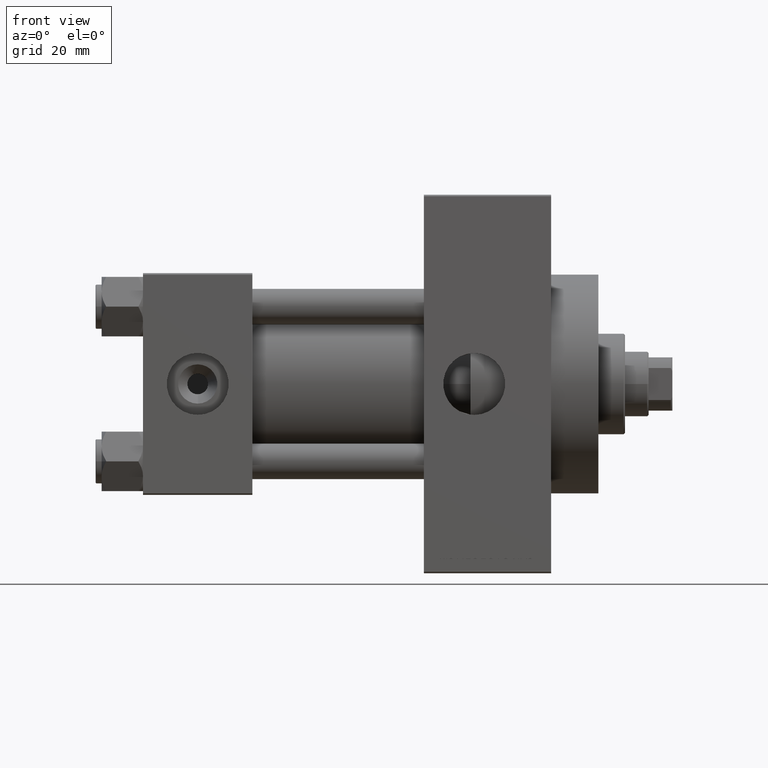
[diagram: clean part render]
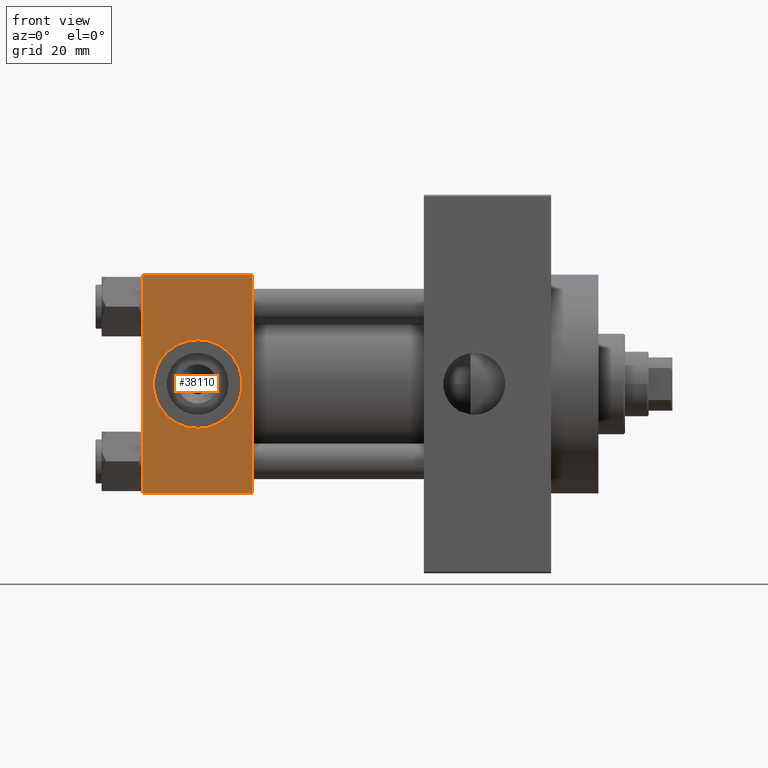
[diagram: same view with one face highlighted and labeled with its STEP entity id]
A machine part, front view. The second image highlights one B-rep face of the part: STEP entity #38110.
In plain terms, the highlighted planar face has unit normal (0, 1, 0).
Its self-contained STEP definition (entity closure, byte-faithful):
#2446 = CARTESIAN_POINT ( 'NONE',  ( 18.50000000000000000, -37.50000000000000711, -3.469446951953614978E-15 ) ) ;
#4035 = CIRCLE ( 'NONE', #34272, 15.00000000000000178 ) ;
#6130 = DIRECTION ( 'NONE',  ( 1.000000000000000000, 0.000000000000000000, 0.000000000000000000 ) ) ;
#7114 = CIRCLE ( 'NONE', #34962, 15.00000000000000178 ) ;
#7753 = CARTESIAN_POINT ( 'NONE',  ( 37.00000000000000000, -37.50000000000000711, 36.99999999999999289 ) ) ;
#8554 = VERTEX_POINT ( 'NONE', #25510 ) ;
#8585 = DIRECTION ( 'NONE',  ( -0.000000000000000000, 1.000000000000000000, 9.251858538542971581E-17 ) ) ;
#11208 = ORIENTED_EDGE ( 'NONE', *, *, #39751, .T. ) ;
#11679 = EDGE_CURVE ( 'NONE', #12432, #40821, #36765, .T. ) ;
#11741 = VERTEX_POINT ( 'NONE', #49257 ) ;
#11866 = FACE_BOUND ( 'NONE', #13862, .T. ) ;
#12432 = VERTEX_POINT ( 'NONE', #19006 ) ;
#13656 = DIRECTION ( 'NONE',  ( 0.000000000000000000, 0.000000000000000000, -1.000000000000000000 ) ) ;
#13862 = EDGE_LOOP ( 'NONE', ( #39369, #16873 ) ) ;
#16069 = CARTESIAN_POINT ( 'NONE',  ( 37.00000000000000000, -37.50000000000000711, 37.49999999999999289 ) ) ;
#16626 = VERTEX_POINT ( 'NONE', #48417 ) ;
#16873 = ORIENTED_EDGE ( 'NONE', *, *, #30347, .F. ) ;
#17108 = DIRECTION ( 'NONE',  ( 0.000000000000000000, 9.251858538542971581E-17, -1.000000000000000000 ) ) ;
#17441 = EDGE_CURVE ( 'NONE', #35490, #40821, #37746, .T. ) ;
#18325 = EDGE_CURVE ( 'NONE', #35490, #16626, #18714, .T. ) ;
#18714 = LINE ( 'NONE', #7753, #38727 ) ;
#19006 = CARTESIAN_POINT ( 'NONE',  ( 0.000000000000000000, -37.50000000000000000, -37.00000000000003553 ) ) ;
#19090 = PLANE ( 'NONE',  #40443 ) ;
#20198 = ORIENTED_EDGE ( 'NONE', *, *, #17441, .F. ) ;
#20524 = VECTOR ( 'NONE', #17108, 1000.000000000000000 ) ;
#20751 = DIRECTION ( 'NONE',  ( 0.000000000000000000, -1.000000000000000000, -8.673617379884036705E-17 ) ) ;
#21371 = DIRECTION ( 'NONE',  ( 0.000000000000000000, -1.000000000000000000, -8.673617379884036705E-17 ) ) ;
#22038 = CARTESIAN_POINT ( 'NONE',  ( 37.00000000000000000, -37.50000000000000711, 37.49999999999999289 ) ) ;
#22841 = EDGE_LOOP ( 'NONE', ( #11208, #41901, #20198, #35928 ) ) ;
#23584 = VECTOR ( 'NONE', #34013, 1000.000000000000000 ) ;
#24496 = CARTESIAN_POINT ( 'NONE',  ( 18.50000000000000000, -37.50000000000000711, -3.469446951953614978E-15 ) ) ;
#25510 = CARTESIAN_POINT ( 'NONE',  ( 18.50000000000000355, -37.50000000000000711, 14.99999999999999822 ) ) ;
#27297 = CARTESIAN_POINT ( 'NONE',  ( 37.00000000000000000, -37.50000000000000711, 36.99999999999999289 ) ) ;
#28094 = CARTESIAN_POINT ( 'NONE',  ( 0.000000000000000000, -37.50000000000000711, 37.49999999999999289 ) ) ;
#28324 = CARTESIAN_POINT ( 'NONE',  ( 37.00000000000000000, -37.50000000000000000, -37.00000000000003553 ) ) ;
#28588 = EDGE_CURVE ( 'NONE', #11741, #8554, #7114, .T. ) ;
#28653 = CARTESIAN_POINT ( 'NONE',  ( 37.00000000000000000, -37.50000000000000000, -37.00000000000003553 ) ) ;
#30347 = EDGE_CURVE ( 'NONE', #8554, #11741, #4035, .T. ) ;
#34013 = DIRECTION ( 'NONE',  ( 0.000000000000000000, 9.251858538542971581E-17, -1.000000000000000000 ) ) ;
#34272 = AXIS2_PLACEMENT_3D ( 'NONE', #2446, #21371, #13656 ) ;
#34537 = DIRECTION ( 'NONE',  ( 0.000000000000000000, -9.251858538542971581E-17, 1.000000000000000000 ) ) ;
#34962 = AXIS2_PLACEMENT_3D ( 'NONE', #24496, #20751, #34984 ) ;
#34984 = DIRECTION ( 'NONE',  ( 0.000000000000000000, 0.000000000000000000, -1.000000000000000000 ) ) ;
#35490 = VERTEX_POINT ( 'NONE', #27297 ) ;
#35546 = LINE ( 'NONE', #28094, #20524 ) ;
#35928 = ORIENTED_EDGE ( 'NONE', *, *, #18325, .T. ) ;
#36765 = LINE ( 'NONE', #28324, #46458 ) ;
#37746 = LINE ( 'NONE', #22038, #23584 ) ;
#38110 = ADVANCED_FACE ( 'NONE', ( #11866, #42482 ), #19090, .F. ) ;
#38727 = VECTOR ( 'NONE', #41645, 1000.000000000000000 ) ;
#39369 = ORIENTED_EDGE ( 'NONE', *, *, #28588, .F. ) ;
#39751 = EDGE_CURVE ( 'NONE', #16626, #12432, #35546, .T. ) ;
#40443 = AXIS2_PLACEMENT_3D ( 'NONE', #16069, #8585, #34537 ) ;
#40821 = VERTEX_POINT ( 'NONE', #28653 ) ;
#41645 = DIRECTION ( 'NONE',  ( -1.000000000000000000, 0.000000000000000000, 0.000000000000000000 ) ) ;
#41901 = ORIENTED_EDGE ( 'NONE', *, *, #11679, .T. ) ;
#42482 = FACE_OUTER_BOUND ( 'NONE', #22841, .T. ) ;
#46458 = VECTOR ( 'NONE', #6130, 1000.000000000000000 ) ;
#48417 = CARTESIAN_POINT ( 'NONE',  ( 0.000000000000000000, -37.50000000000000711, 36.99999999999999289 ) ) ;
#49257 = CARTESIAN_POINT ( 'NONE',  ( 18.50000000000000000, -37.50000000000000711, -15.00000000000000533 ) ) ;